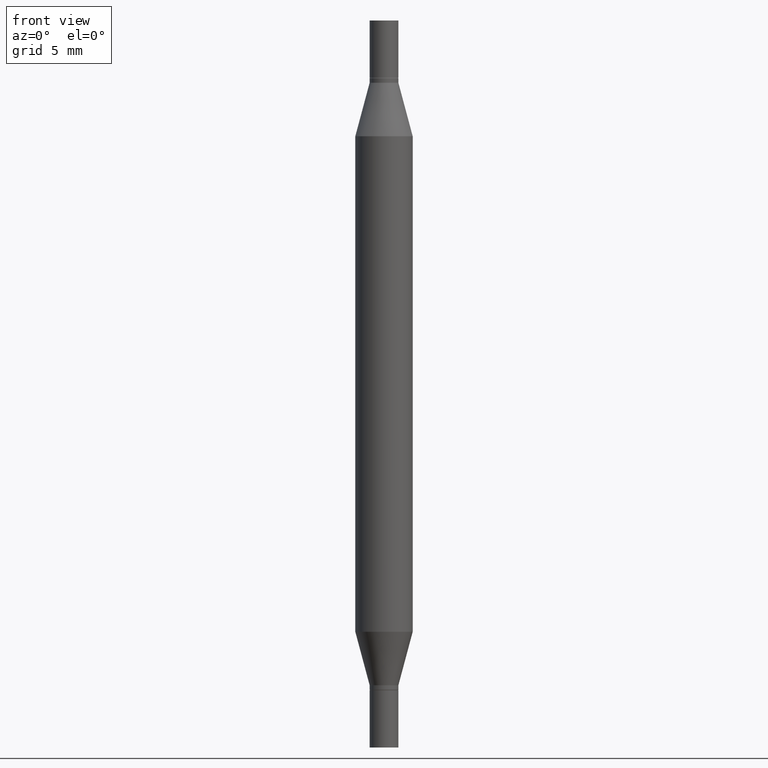
[diagram: clean part render]
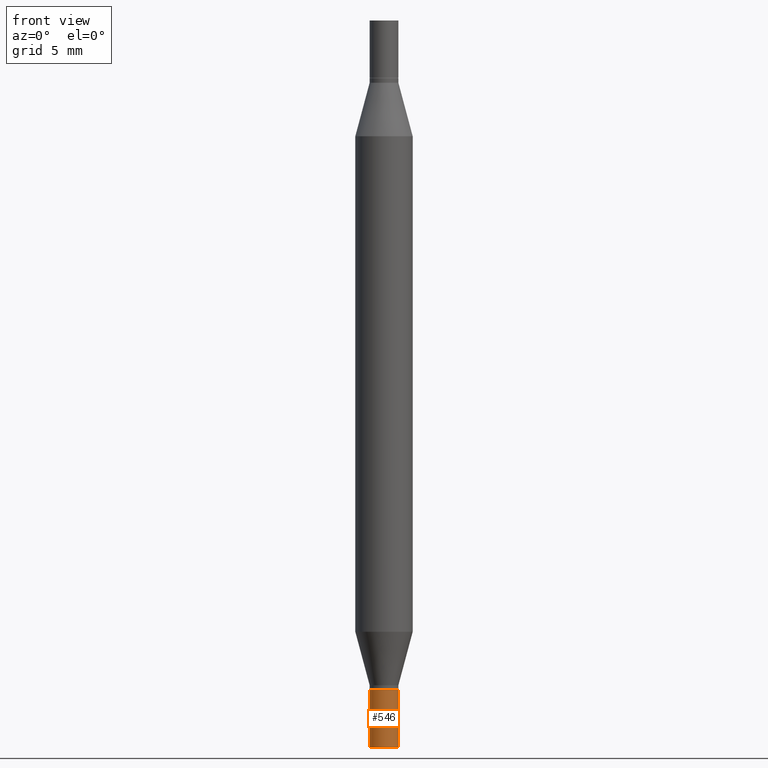
[diagram: same view with one face highlighted and labeled with its STEP entity id]
A machine part, front view. The second image highlights one B-rep face of the part: STEP entity #546.
In plain terms, the highlighted cylindrical surface (edge-blend (fillet) strip) has radius 0.7506 mm, axis along (-0, 0, 1).
Its self-contained STEP definition (entity closure, byte-faithful):
#53 = VECTOR ( 'NONE', #231, 39.37007874015748143 ) ;
#70 = CIRCLE ( 'NONE', #925, 0.02954999999999999988 ) ;
#123 = CARTESIAN_POINT ( 'NONE',  ( 0.02954999999999999988, -5.429951778168858482E-15, -1.496099999999999985 ) ) ;
#134 = DIRECTION ( 'NONE',  ( -2.445468806185136597E-29, 3.491481338843145583E-15, 1.000000000000000000 ) ) ;
#151 = LINE ( 'NONE', #745, #53 ) ;
#153 = EDGE_CURVE ( 'NONE', #376, #328, #794, .T. ) ;
#163 = CARTESIAN_POINT ( 'NONE',  ( -0.02954999999999999988, -4.807467879567433237E-15, -1.496099999999999985 ) ) ;
#174 = CARTESIAN_POINT ( 'NONE',  ( 3.658665880933582389E-29, -5.223605231043229660E-15, -1.496099999999999985 ) ) ;
#231 = DIRECTION ( 'NONE',  ( -2.445468806185136877E-29, 3.491481338843145188E-15, 1.000000000000000000 ) ) ;
#255 = AXIS2_PLACEMENT_3D ( 'NONE', #464, #469, #759 ) ;
#288 = EDGE_CURVE ( 'NONE', #291, #376, #70, .T. ) ;
#289 = DIRECTION ( 'NONE',  ( 1.000000000000000000, -6.982962677686266711E-15, 4.876176775795935793E-29 ) ) ;
#291 = VERTEX_POINT ( 'NONE', #163 ) ;
#312 = DIRECTION ( 'NONE',  ( 1.000000000000000000, -6.982962677686261977E-15, 0.000000000000000000 ) ) ;
#324 = VERTEX_POINT ( 'NONE', #536 ) ;
#328 = VERTEX_POINT ( 'NONE', #914 ) ;
#329 = EDGE_CURVE ( 'NONE', #324, #328, #703, .T. ) ;
#358 = EDGE_CURVE ( 'NONE', #291, #324, #151, .T. ) ;
#374 = ORIENTED_EDGE ( 'NONE', *, *, #329, .F. ) ;
#376 = VERTEX_POINT ( 'NONE', #123 ) ;
#426 = CYLINDRICAL_SURFACE ( 'NONE', #746, 0.02954999999999999988 ) ;
#450 = EDGE_LOOP ( 'NONE', ( #758, #910, #620, #374 ) ) ;
#464 = CARTESIAN_POINT ( 'NONE',  ( 3.369856014923117948E-29, -4.811261284925853951E-15, -1.377999999999999892 ) ) ;
#469 = DIRECTION ( 'NONE',  ( -2.445468806185136597E-29, 3.491481338843145583E-15, 1.000000000000000000 ) ) ;
#496 = VECTOR ( 'NONE', #512, 39.37007874015748143 ) ;
#512 = DIRECTION ( 'NONE',  ( -2.445468806185136877E-29, 3.491481338843145188E-15, 1.000000000000000000 ) ) ;
#536 = CARTESIAN_POINT ( 'NONE',  ( -0.02954999999999999988, -4.807467879567433237E-15, -1.377999999999999892 ) ) ;
#546 = ADVANCED_FACE ( 'NONE', ( #576 ), #426, .T. ) ;
#576 = FACE_OUTER_BOUND ( 'NONE', #450, .T. ) ;
#620 = ORIENTED_EDGE ( 'NONE', *, *, #153, .T. ) ;
#672 = DIRECTION ( 'NONE',  ( -2.445468806185136597E-29, 3.491481338843145583E-15, 1.000000000000000000 ) ) ;
#703 = CIRCLE ( 'NONE', #255, 0.02954999999999999988 ) ;
#730 = CARTESIAN_POINT ( 'NONE',  ( 0.000000000000000000, 0.000000000000000000, 0.000000000000000000 ) ) ;
#745 = CARTESIAN_POINT ( 'NONE',  ( -0.02954999999999999988, 2.099653784171096041E-16, -1.453545319170324550E-30 ) ) ;
#746 = AXIS2_PLACEMENT_3D ( 'NONE', #730, #134, #289 ) ;
#758 = ORIENTED_EDGE ( 'NONE', *, *, #358, .F. ) ;
#759 = DIRECTION ( 'NONE',  ( 1.000000000000000000, -6.982962677686261977E-15, 0.000000000000000000 ) ) ;
#794 = LINE ( 'NONE', #968, #496 ) ;
#910 = ORIENTED_EDGE ( 'NONE', *, *, #288, .T. ) ;
#914 = CARTESIAN_POINT ( 'NONE',  ( 0.02954999999999999988, -5.017607832051483561E-15, -1.377999999999999892 ) ) ;
#925 = AXIS2_PLACEMENT_3D ( 'NONE', #174, #672, #312 ) ;
#968 = CARTESIAN_POINT ( 'NONE',  ( 0.02954999999999999988, -2.063465471256291914E-16, 1.440910237247699070E-30 ) ) ;